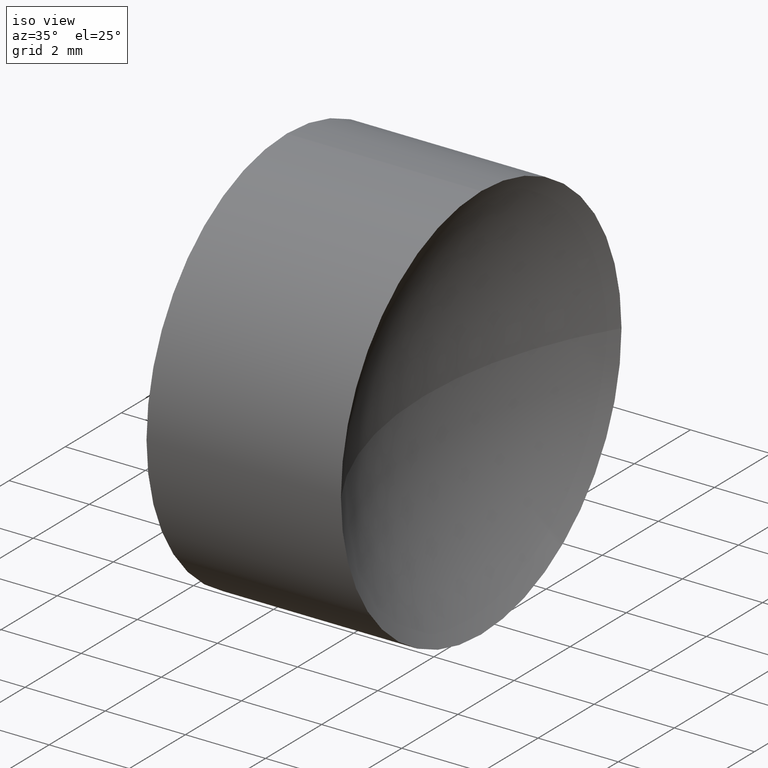
[diagram: clean part render]
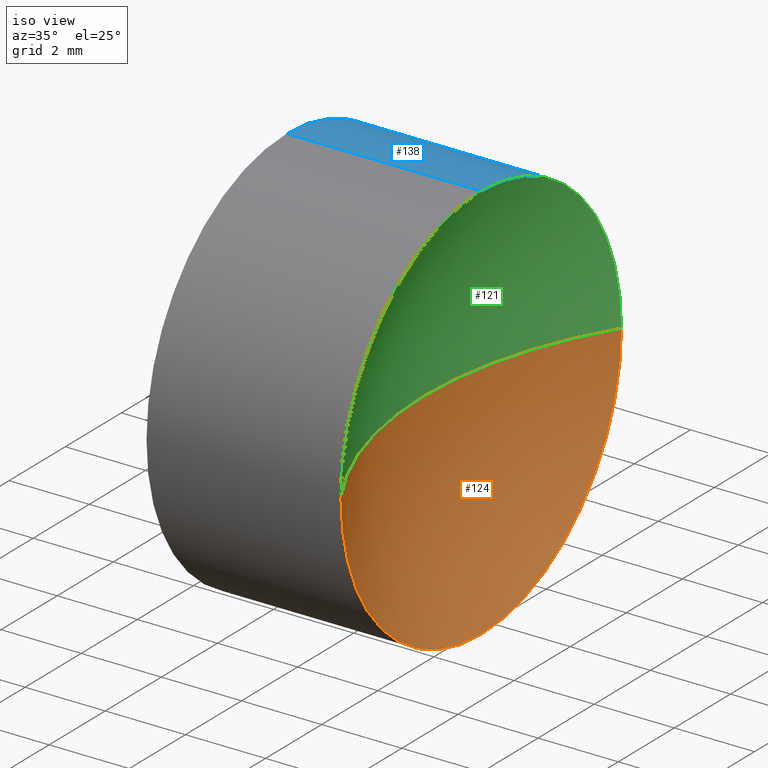
[diagram: same view with three faces highlighted in distinct colors, each labeled with its STEP entity id]
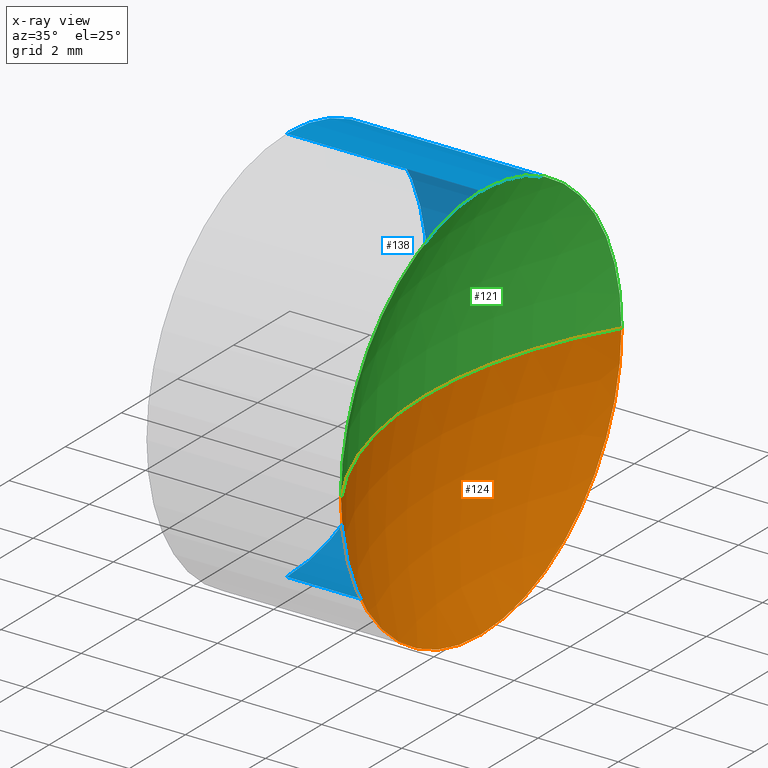
[diagram: x-ray of the same camera — body ghosted, the three highlighted faces saturated]
A machine part, iso view with three faces highlighted in distinct colors.
The next image is the same camera in x-ray (body ghosted, the three faces saturated) — at least one of them is partly hidden behind the body in this view.
Their STEP definitions:

[orange] entity #124 — the highlighted spherical surface has radius 9.48 mm.
#5 = CIRCLE ( 'NONE', #32, 9.479999999999995100 ) ;
#7 = CIRCLE ( 'NONE', #78, 4.999999999999999100 ) ;
#13 = DIRECTION ( 'NONE',  ( 0.0000000000000000000, 1.000000000000000000, 1.224646799147353200E-016 ) ) ;
#14 = EDGE_CURVE ( 'NONE', #136, #126, #7, .T. ) ;
#16 = CIRCLE ( 'NONE', #41, 9.479999999999995100 ) ;
#18 = EDGE_LOOP ( 'NONE', ( #181, #93, #229, #40 ) ) ;
#25 = AXIS2_PLACEMENT_3D ( 'NONE', #219, #222, #85 ) ;
#28 = CARTESIAN_POINT ( 'NONE',  ( 26.45004007673697900, 13.04452057459747900, -4.999999999999999100 ) ) ;
#32 = AXIS2_PLACEMENT_3D ( 'NONE', #162, #105, #164 ) ;
#40 = ORIENTED_EDGE ( 'NONE', *, *, #202, .T. ) ;
#41 = AXIS2_PLACEMENT_3D ( 'NONE', #161, #108, #13 ) ;
#45 = CARTESIAN_POINT ( 'NONE',  ( 26.45004007673697900, 8.044520574597477500, -6.123233995736767300E-016 ) ) ;
#47 = DIRECTION ( 'NONE',  ( -1.000000000000000000, -0.0000000000000000000, -0.0000000000000000000 ) ) ;
#56 = VERTEX_POINT ( 'NONE', #173 ) ;
#70 = CARTESIAN_POINT ( 'NONE',  ( 26.45004007673697900, 13.04452057459747900, 0.0000000000000000000 ) ) ;
#72 = DIRECTION ( 'NONE',  ( 0.0000000000000000000, 0.0000000000000000000, 1.000000000000000000 ) ) ;
#78 = AXIS2_PLACEMENT_3D ( 'NONE', #174, #47, #122 ) ;
#85 = DIRECTION ( 'NONE',  ( 0.0000000000000000000, 1.000000000000000000, 0.0000000000000000000 ) ) ;
#93 = ORIENTED_EDGE ( 'NONE', *, *, #14, .F. ) ;
#105 = DIRECTION ( 'NONE',  ( 0.0000000000000000000, 0.0000000000000000000, 1.000000000000000000 ) ) ;
#108 = DIRECTION ( 'NONE',  ( 0.0000000000000000000, 1.224646799147353200E-016, -1.000000000000000000 ) ) ;
#111 = VERTEX_POINT ( 'NONE', #189 ) ;
#122 = DIRECTION ( 'NONE',  ( 0.0000000000000000000, 0.0000000000000000000, 1.000000000000000000 ) ) ;
#124 = ADVANCED_FACE ( 'NONE', ( #184 ), #230, .F. ) ;
#126 = VERTEX_POINT ( 'NONE', #45 ) ;
#129 = DIRECTION ( 'NONE',  ( -1.000000000000000000, -0.0000000000000000000, -0.0000000000000000000 ) ) ;
#136 = VERTEX_POINT ( 'NONE', #28 ) ;
#161 = CARTESIAN_POINT ( 'NONE',  ( 34.50425636387502900, 13.04452057459747700, 0.0000000000000000000 ) ) ;
#162 = CARTESIAN_POINT ( 'NONE',  ( 34.50425636387502900, 13.04452057459747700, 0.0000000000000000000 ) ) ;
#164 = DIRECTION ( 'NONE',  ( 1.000000000000000000, 0.0000000000000000000, 0.0000000000000000000 ) ) ;
#167 = EDGE_CURVE ( 'NONE', #126, #56, #16, .T. ) ;
#173 = CARTESIAN_POINT ( 'NONE',  ( 25.02425636387503600, 13.04452057459747700, 0.0000000000000000000 ) ) ;
#174 = CARTESIAN_POINT ( 'NONE',  ( 26.45004007673697900, 13.04452057459747900, 0.0000000000000000000 ) ) ;
#181 = ORIENTED_EDGE ( 'NONE', *, *, #167, .F. ) ;
#184 = FACE_OUTER_BOUND ( 'NONE', #18, .T. ) ;
#189 = CARTESIAN_POINT ( 'NONE',  ( 26.45004007673697900, 18.04452057459748100, 0.0000000000000000000 ) ) ;
#193 = AXIS2_PLACEMENT_3D ( 'NONE', #70, #129, #72 ) ;
#195 = CIRCLE ( 'NONE', #193, 4.999999999999999100 ) ;
#202 = EDGE_CURVE ( 'NONE', #111, #56, #5, .T. ) ;
#215 = EDGE_CURVE ( 'NONE', #111, #136, #195, .T. ) ;
#219 = CARTESIAN_POINT ( 'NONE',  ( 34.50425636387502900, 13.04452057459747700, 0.0000000000000000000 ) ) ;
#222 = DIRECTION ( 'NONE',  ( 0.0000000000000000000, 0.0000000000000000000, -1.000000000000000000 ) ) ;
#229 = ORIENTED_EDGE ( 'NONE', *, *, #215, .F. ) ;
#230 = SPHERICAL_SURFACE ( 'NONE', #25, 9.479999999999995100 ) ;

[blue] entity #138 — the highlighted cylindrical surface (partial cylindrical patch) has radius 5 mm, axis along (-1, -0, -0).
#1 = CYLINDRICAL_SURFACE ( 'NONE', #169, 4.999999999999999100 ) ;
#2 = ORIENTED_EDGE ( 'NONE', *, *, #209, .F. ) ;
#3 = EDGE_CURVE ( 'NONE', #64, #111, #188, .T. ) ;
#6 = CARTESIAN_POINT ( 'NONE',  ( 21.59847265101309000, 13.04452057459747900, 0.0000000000000000000 ) ) ;
#10 = CARTESIAN_POINT ( 'NONE',  ( 26.45004007673697900, 13.04452057459747900, 0.0000000000000000000 ) ) ;
#17 = DIRECTION ( 'NONE',  ( -1.000000000000000000, -0.0000000000000000000, -0.0000000000000000000 ) ) ;
#19 = CARTESIAN_POINT ( 'NONE',  ( 21.59847265101309000, 13.04452057459747900, 4.999999999999999100 ) ) ;
#21 = EDGE_CURVE ( 'NONE', #210, #39, #149, .T. ) ;
#28 = CARTESIAN_POINT ( 'NONE',  ( 26.45004007673697900, 13.04452057459747900, -4.999999999999999100 ) ) ;
#31 = AXIS2_PLACEMENT_3D ( 'NONE', #10, #135, #100 ) ;
#39 = VERTEX_POINT ( 'NONE', #194 ) ;
#42 = DIRECTION ( 'NONE',  ( -1.000000000000000000, -0.0000000000000000000, -0.0000000000000000000 ) ) ;
#46 = AXIS2_PLACEMENT_3D ( 'NONE', #211, #225, #109 ) ;
#48 = EDGE_LOOP ( 'NONE', ( #103, #168, #2, #133, #192, #115 ) ) ;
#51 = DIRECTION ( 'NONE',  ( 0.0000000000000000000, 0.0000000000000000000, 1.000000000000000000 ) ) ;
#55 = FACE_OUTER_BOUND ( 'NONE', #48, .T. ) ;
#59 = LINE ( 'NONE', #125, #201 ) ;
#63 = DIRECTION ( 'NONE',  ( -1.000000000000000000, -0.0000000000000000000, -0.0000000000000000000 ) ) ;
#64 = VERTEX_POINT ( 'NONE', #218 ) ;
#70 = CARTESIAN_POINT ( 'NONE',  ( 26.45004007673697900, 13.04452057459747900, 0.0000000000000000000 ) ) ;
#71 = DIRECTION ( 'NONE',  ( -1.000000000000000000, -0.0000000000000000000, -0.0000000000000000000 ) ) ;
#72 = DIRECTION ( 'NONE',  ( 0.0000000000000000000, 0.0000000000000000000, 1.000000000000000000 ) ) ;
#91 = VERTEX_POINT ( 'NONE', #137 ) ;
#98 = VECTOR ( 'NONE', #17, 1000.000000000000000 ) ;
#100 = DIRECTION ( 'NONE',  ( 0.0000000000000000000, 0.0000000000000000000, 1.000000000000000000 ) ) ;
#103 = ORIENTED_EDGE ( 'NONE', *, *, #215, .T. ) ;
#109 = DIRECTION ( 'NONE',  ( 0.0000000000000000000, 0.0000000000000000000, 1.000000000000000000 ) ) ;
#111 = VERTEX_POINT ( 'NONE', #189 ) ;
#115 = ORIENTED_EDGE ( 'NONE', *, *, #3, .T. ) ;
#125 = CARTESIAN_POINT ( 'NONE',  ( 21.22493055706841100, 13.04452057459747900, 4.999999999999999100 ) ) ;
#129 = DIRECTION ( 'NONE',  ( -1.000000000000000000, -0.0000000000000000000, -0.0000000000000000000 ) ) ;
#133 = ORIENTED_EDGE ( 'NONE', *, *, #21, .F. ) ;
#135 = DIRECTION ( 'NONE',  ( -1.000000000000000000, -0.0000000000000000000, -0.0000000000000000000 ) ) ;
#136 = VERTEX_POINT ( 'NONE', #28 ) ;
#137 = CARTESIAN_POINT ( 'NONE',  ( 21.59847265101309000, 13.04452057459747900, -4.999999999999999100 ) ) ;
#138 = ADVANCED_FACE ( 'NONE', ( #55 ), #1, .T. ) ;
#148 = CIRCLE ( 'NONE', #46, 4.999999999999999100 ) ;
#149 = CIRCLE ( 'NONE', #180, 4.999999999999999100 ) ;
#168 = ORIENTED_EDGE ( 'NONE', *, *, #177, .T. ) ;
#169 = AXIS2_PLACEMENT_3D ( 'NONE', #207, #42, #51 ) ;
#177 = EDGE_CURVE ( 'NONE', #136, #91, #186, .T. ) ;
#180 = AXIS2_PLACEMENT_3D ( 'NONE', #6, #63, #187 ) ;
#185 = EDGE_CURVE ( 'NONE', #64, #210, #59, .T. ) ;
#186 = LINE ( 'NONE', #212, #98 ) ;
#187 = DIRECTION ( 'NONE',  ( 0.0000000000000000000, 0.0000000000000000000, 1.000000000000000000 ) ) ;
#188 = CIRCLE ( 'NONE', #31, 4.999999999999999100 ) ;
#189 = CARTESIAN_POINT ( 'NONE',  ( 26.45004007673697900, 18.04452057459748100, 0.0000000000000000000 ) ) ;
#192 = ORIENTED_EDGE ( 'NONE', *, *, #185, .F. ) ;
#193 = AXIS2_PLACEMENT_3D ( 'NONE', #70, #129, #72 ) ;
#194 = CARTESIAN_POINT ( 'NONE',  ( 21.59847265101309000, 18.04452057459747700, 0.0000000000000000000 ) ) ;
#195 = CIRCLE ( 'NONE', #193, 4.999999999999999100 ) ;
#201 = VECTOR ( 'NONE', #71, 1000.000000000000000 ) ;
#207 = CARTESIAN_POINT ( 'NONE',  ( 21.22493055706841100, 13.04452057459747900, 0.0000000000000000000 ) ) ;
#209 = EDGE_CURVE ( 'NONE', #39, #91, #148, .T. ) ;
#210 = VERTEX_POINT ( 'NONE', #19 ) ;
#211 = CARTESIAN_POINT ( 'NONE',  ( 21.59847265101309000, 13.04452057459747900, 0.0000000000000000000 ) ) ;
#212 = CARTESIAN_POINT ( 'NONE',  ( 21.22493055706841100, 13.04452057459747900, -4.999999999999999100 ) ) ;
#215 = EDGE_CURVE ( 'NONE', #111, #136, #195, .T. ) ;
#218 = CARTESIAN_POINT ( 'NONE',  ( 26.45004007673697900, 13.04452057459747900, 4.999999999999999100 ) ) ;
#225 = DIRECTION ( 'NONE',  ( -1.000000000000000000, -0.0000000000000000000, -0.0000000000000000000 ) ) ;

[green] entity #121 — the highlighted spherical surface has radius 9.48 mm.
#3 = EDGE_CURVE ( 'NONE', #64, #111, #188, .T. ) ;
#5 = CIRCLE ( 'NONE', #32, 9.479999999999995100 ) ;
#10 = CARTESIAN_POINT ( 'NONE',  ( 26.45004007673697900, 13.04452057459747900, 0.0000000000000000000 ) ) ;
#13 = DIRECTION ( 'NONE',  ( 0.0000000000000000000, 1.000000000000000000, 1.224646799147353200E-016 ) ) ;
#16 = CIRCLE ( 'NONE', #41, 9.479999999999995100 ) ;
#22 = AXIS2_PLACEMENT_3D ( 'NONE', #87, #67, #156 ) ;
#31 = AXIS2_PLACEMENT_3D ( 'NONE', #10, #135, #100 ) ;
#32 = AXIS2_PLACEMENT_3D ( 'NONE', #162, #105, #164 ) ;
#41 = AXIS2_PLACEMENT_3D ( 'NONE', #161, #108, #13 ) ;
#45 = CARTESIAN_POINT ( 'NONE',  ( 26.45004007673697900, 8.044520574597477500, -6.123233995736767300E-016 ) ) ;
#50 = DIRECTION ( 'NONE',  ( 0.0000000000000000000, 0.0000000000000000000, 1.000000000000000000 ) ) ;
#56 = VERTEX_POINT ( 'NONE', #173 ) ;
#60 = ORIENTED_EDGE ( 'NONE', *, *, #202, .F. ) ;
#64 = VERTEX_POINT ( 'NONE', #218 ) ;
#67 = DIRECTION ( 'NONE',  ( 0.0000000000000000000, 0.0000000000000000000, -1.000000000000000000 ) ) ;
#76 = ORIENTED_EDGE ( 'NONE', *, *, #167, .T. ) ;
#81 = FACE_OUTER_BOUND ( 'NONE', #179, .T. ) ;
#87 = CARTESIAN_POINT ( 'NONE',  ( 34.50425636387502900, 13.04452057459747700, 0.0000000000000000000 ) ) ;
#89 = CIRCLE ( 'NONE', #146, 4.999999999999999100 ) ;
#90 = DIRECTION ( 'NONE',  ( -1.000000000000000000, -0.0000000000000000000, -0.0000000000000000000 ) ) ;
#97 = ORIENTED_EDGE ( 'NONE', *, *, #145, .F. ) ;
#100 = DIRECTION ( 'NONE',  ( 0.0000000000000000000, 0.0000000000000000000, 1.000000000000000000 ) ) ;
#105 = DIRECTION ( 'NONE',  ( 0.0000000000000000000, 0.0000000000000000000, 1.000000000000000000 ) ) ;
#108 = DIRECTION ( 'NONE',  ( 0.0000000000000000000, 1.224646799147353200E-016, -1.000000000000000000 ) ) ;
#111 = VERTEX_POINT ( 'NONE', #189 ) ;
#121 = ADVANCED_FACE ( 'NONE', ( #81 ), #132, .F. ) ;
#126 = VERTEX_POINT ( 'NONE', #45 ) ;
#132 = SPHERICAL_SURFACE ( 'NONE', #22, 9.479999999999995100 ) ;
#135 = DIRECTION ( 'NONE',  ( -1.000000000000000000, -0.0000000000000000000, -0.0000000000000000000 ) ) ;
#145 = EDGE_CURVE ( 'NONE', #126, #64, #89, .T. ) ;
#146 = AXIS2_PLACEMENT_3D ( 'NONE', #227, #90, #50 ) ;
#156 = DIRECTION ( 'NONE',  ( 0.0000000000000000000, 1.000000000000000000, 0.0000000000000000000 ) ) ;
#161 = CARTESIAN_POINT ( 'NONE',  ( 34.50425636387502900, 13.04452057459747700, 0.0000000000000000000 ) ) ;
#162 = CARTESIAN_POINT ( 'NONE',  ( 34.50425636387502900, 13.04452057459747700, 0.0000000000000000000 ) ) ;
#164 = DIRECTION ( 'NONE',  ( 1.000000000000000000, 0.0000000000000000000, 0.0000000000000000000 ) ) ;
#167 = EDGE_CURVE ( 'NONE', #126, #56, #16, .T. ) ;
#173 = CARTESIAN_POINT ( 'NONE',  ( 25.02425636387503600, 13.04452057459747700, 0.0000000000000000000 ) ) ;
#179 = EDGE_LOOP ( 'NONE', ( #97, #76, #60, #228 ) ) ;
#188 = CIRCLE ( 'NONE', #31, 4.999999999999999100 ) ;
#189 = CARTESIAN_POINT ( 'NONE',  ( 26.45004007673697900, 18.04452057459748100, 0.0000000000000000000 ) ) ;
#202 = EDGE_CURVE ( 'NONE', #111, #56, #5, .T. ) ;
#218 = CARTESIAN_POINT ( 'NONE',  ( 26.45004007673697900, 13.04452057459747900, 4.999999999999999100 ) ) ;
#227 = CARTESIAN_POINT ( 'NONE',  ( 26.45004007673697900, 13.04452057459747900, 0.0000000000000000000 ) ) ;
#228 = ORIENTED_EDGE ( 'NONE', *, *, #3, .F. ) ;